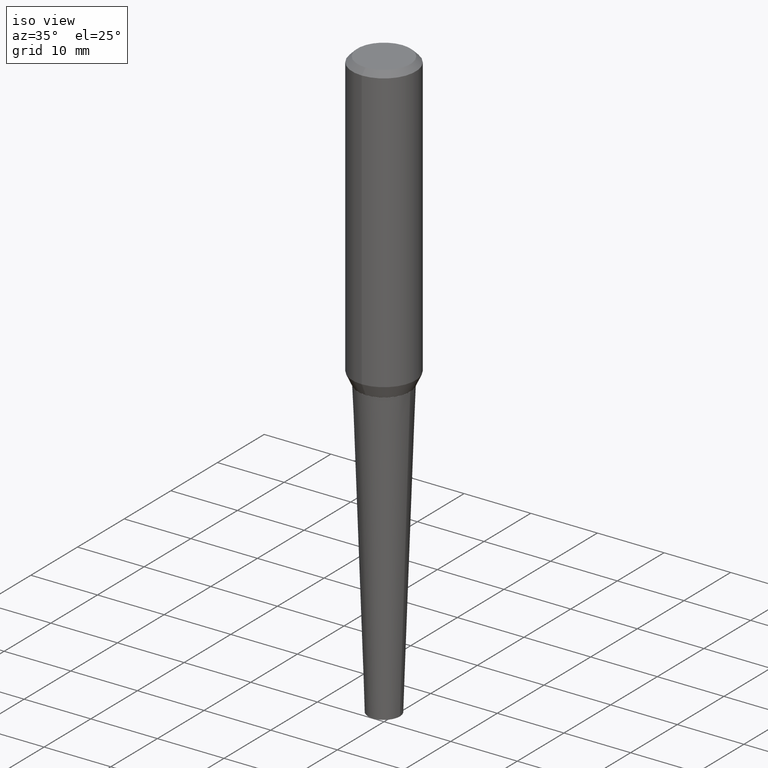
[diagram: clean part render]
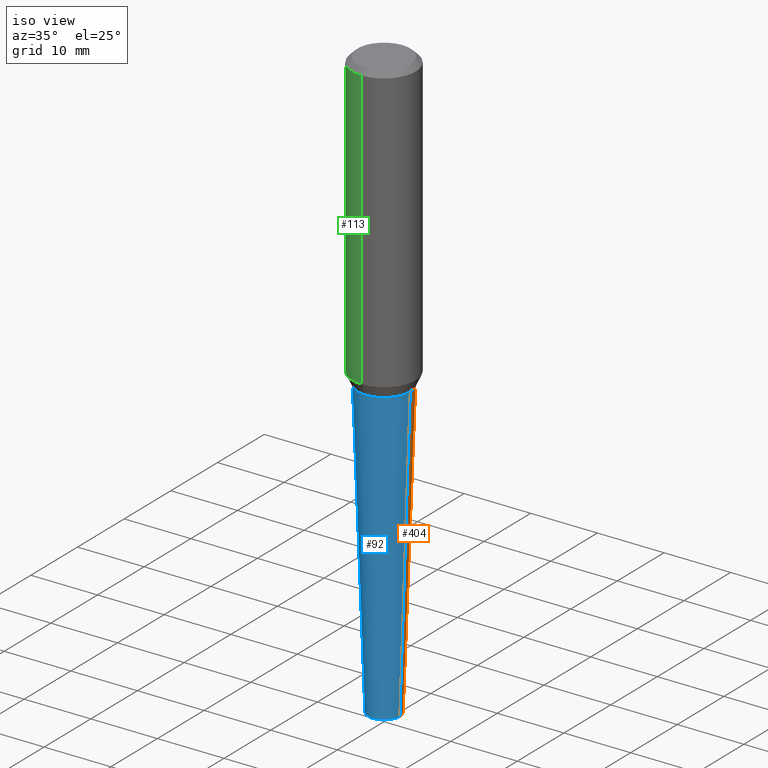
[diagram: same view with three faces highlighted in distinct colors, each labeled with its STEP entity id]
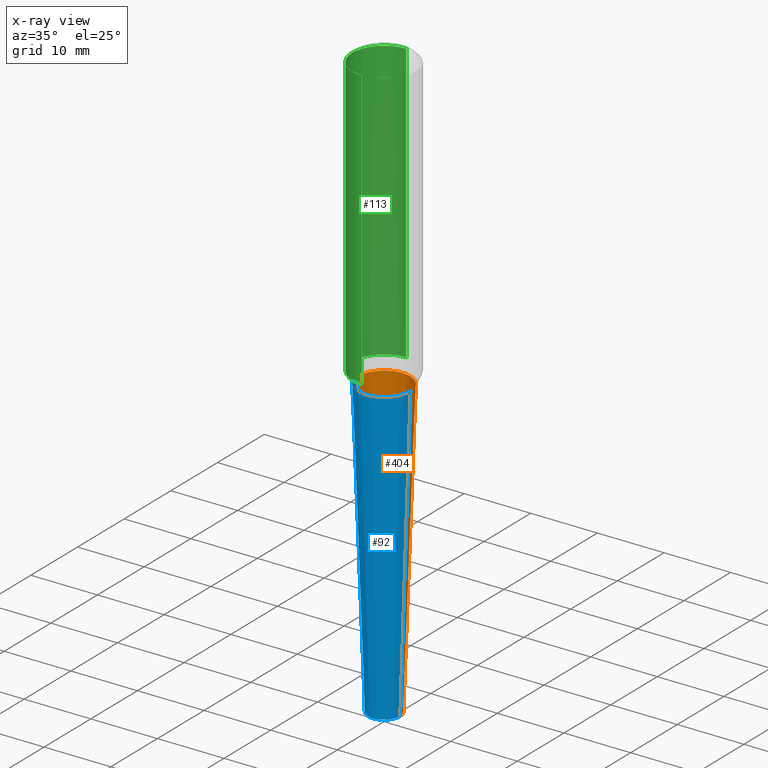
[diagram: x-ray of the same camera — body ghosted, the three highlighted faces saturated]
A machine part, iso view with three faces highlighted in distinct colors.
The next image is the same camera in x-ray (body ghosted, the three faces saturated) — at least one of them is partly hidden behind the body in this view.
Their STEP definitions:

[orange] entity #404 — the highlighted conical surface has half-angle 2 deg.
#6 = ORIENTED_EDGE ( 'NONE', *, *, #141, .T. ) ;
#24 = VERTEX_POINT ( 'NONE', #65 ) ;
#30 = DIRECTION ( 'NONE',  ( -0.03489949670249375274, 3.737330261384596316E-15, 0.9993908270190959842 ) ) ;
#45 = EDGE_CURVE ( 'NONE', #403, #308, #387, .T. ) ;
#65 = CARTESIAN_POINT ( 'NONE',  ( 0.1548613466105459580, -7.191483346573183541E-15, -1.750000000000000000 ) ) ;
#101 = CARTESIAN_POINT ( 'NONE',  ( 8.559140821647976968E-29, -1.222018468595100934E-14, -3.500000000000000000 ) ) ;
#104 = DIRECTION ( 'NONE',  ( 1.000000000000000000, -6.982962677686257244E-15, 0.000000000000000000 ) ) ;
#112 = CARTESIAN_POINT ( 'NONE',  ( -0.09375000000000006939, -8.281893582654957434E-15, -3.500000000000000000 ) ) ;
#126 = CONICAL_SURFACE ( 'NONE', #342, 0.09375000000000006939, 0.03490658503987936756 ) ;
#128 = ORIENTED_EDGE ( 'NONE', *, *, #45, .T. ) ;
#141 = EDGE_CURVE ( 'NONE', #308, #344, #282, .T. ) ;
#151 = ORIENTED_EDGE ( 'NONE', *, *, #214, .F. ) ;
#174 = LINE ( 'NONE', #266, #377 ) ;
#184 = CIRCLE ( 'NONE', #306, 0.1548613466105459580 ) ;
#190 = DIRECTION ( 'NONE',  ( -2.445468806185136597E-29, 3.491481338843145583E-15, 1.000000000000000000 ) ) ;
#195 = CARTESIAN_POINT ( 'NONE',  ( 0.09375000000000006939, -1.287483743698409606E-14, -3.500000000000000000 ) ) ;
#197 = CARTESIAN_POINT ( 'NONE',  ( -0.09375000000000006939, -1.155405087117591384E-14, -3.500000000000000000 ) ) ;
#199 = CARTESIAN_POINT ( 'NONE',  ( 4.279570410823988484E-29, -6.110092342975504671E-15, -1.750000000000000000 ) ) ;
#207 = AXIS2_PLACEMENT_3D ( 'NONE', #295, #357, #233 ) ;
#214 = EDGE_CURVE ( 'NONE', #403, #24, #174, .T. ) ;
#233 = DIRECTION ( 'NONE',  ( 1.000000000000000000, -6.982962677686257244E-15, 0.000000000000000000 ) ) ;
#266 = CARTESIAN_POINT ( 'NONE',  ( 0.09375000000000006939, -1.287483743698409606E-14, -3.500000000000000000 ) ) ;
#282 = LINE ( 'NONE', #197, #311 ) ;
#290 = DIRECTION ( 'NONE',  ( -2.445468806185136597E-29, 3.491481338843145583E-15, 1.000000000000000000 ) ) ;
#295 = CARTESIAN_POINT ( 'NONE',  ( 8.559140821647976968E-29, -1.222018468595100934E-14, -3.500000000000000000 ) ) ;
#296 = ORIENTED_EDGE ( 'NONE', *, *, #380, .F. ) ;
#297 = DIRECTION ( 'NONE',  ( 0.03489949670249375274, 3.245652539804642670E-15, 0.9993908270190959842 ) ) ;
#306 = AXIS2_PLACEMENT_3D ( 'NONE', #199, #290, #331 ) ;
#308 = VERTEX_POINT ( 'NONE', #112 ) ;
#311 = VECTOR ( 'NONE', #30, 39.37007874015748143 ) ;
#319 = EDGE_LOOP ( 'NONE', ( #128, #6, #296, #151 ) ) ;
#331 = DIRECTION ( 'NONE',  ( 1.000000000000000000, -6.982962677686268288E-15, 0.000000000000000000 ) ) ;
#342 = AXIS2_PLACEMENT_3D ( 'NONE', #101, #190, #104 ) ;
#344 = VERTEX_POINT ( 'NONE', #374 ) ;
#357 = DIRECTION ( 'NONE',  ( -2.445468806185136597E-29, 3.491481338843145583E-15, 1.000000000000000000 ) ) ;
#374 = CARTESIAN_POINT ( 'NONE',  ( -0.1548613466105459580, -5.009736294134001028E-15, -1.750000000000000000 ) ) ;
#377 = VECTOR ( 'NONE', #297, 39.37007874015748143 ) ;
#380 = EDGE_CURVE ( 'NONE', #24, #344, #184, .T. ) ;
#384 = FACE_OUTER_BOUND ( 'NONE', #319, .T. ) ;
#387 = CIRCLE ( 'NONE', #207, 0.09375000000000006939 ) ;
#403 = VERTEX_POINT ( 'NONE', #195 ) ;
#404 = ADVANCED_FACE ( 'NONE', ( #384 ), #126, .T. ) ;

[blue] entity #92 — the highlighted conical surface has half-angle 2 deg.
#24 = VERTEX_POINT ( 'NONE', #65 ) ;
#30 = DIRECTION ( 'NONE',  ( -0.03489949670249375274, 3.737330261384596316E-15, 0.9993908270190959842 ) ) ;
#35 = DIRECTION ( 'NONE',  ( -2.445468806185136597E-29, 3.491481338843145583E-15, 1.000000000000000000 ) ) ;
#37 = DIRECTION ( 'NONE',  ( 1.000000000000000000, -6.982962677686257244E-15, 0.000000000000000000 ) ) ;
#54 = CIRCLE ( 'NONE', #372, 0.09375000000000006939 ) ;
#65 = CARTESIAN_POINT ( 'NONE',  ( 0.1548613466105459580, -7.191483346573183541E-15, -1.750000000000000000 ) ) ;
#69 = CIRCLE ( 'NONE', #111, 0.1548613466105459580 ) ;
#71 = FACE_OUTER_BOUND ( 'NONE', #341, .T. ) ;
#92 = ADVANCED_FACE ( 'NONE', ( #71 ), #392, .T. ) ;
#111 = AXIS2_PLACEMENT_3D ( 'NONE', #203, #225, #414 ) ;
#112 = CARTESIAN_POINT ( 'NONE',  ( -0.09375000000000006939, -8.281893582654957434E-15, -3.500000000000000000 ) ) ;
#114 = DIRECTION ( 'NONE',  ( 1.000000000000000000, -6.982962677686257244E-15, 0.000000000000000000 ) ) ;
#122 = CARTESIAN_POINT ( 'NONE',  ( 8.559140821647976968E-29, -1.222018468595100934E-14, -3.500000000000000000 ) ) ;
#141 = EDGE_CURVE ( 'NONE', #308, #344, #282, .T. ) ;
#174 = LINE ( 'NONE', #266, #377 ) ;
#193 = CARTESIAN_POINT ( 'NONE',  ( 8.559140821647976968E-29, -1.222018468595100934E-14, -3.500000000000000000 ) ) ;
#195 = CARTESIAN_POINT ( 'NONE',  ( 0.09375000000000006939, -1.287483743698409606E-14, -3.500000000000000000 ) ) ;
#197 = CARTESIAN_POINT ( 'NONE',  ( -0.09375000000000006939, -1.155405087117591384E-14, -3.500000000000000000 ) ) ;
#203 = CARTESIAN_POINT ( 'NONE',  ( 4.279570410823988484E-29, -6.110092342975504671E-15, -1.750000000000000000 ) ) ;
#214 = EDGE_CURVE ( 'NONE', #403, #24, #174, .T. ) ;
#219 = ORIENTED_EDGE ( 'NONE', *, *, #214, .T. ) ;
#225 = DIRECTION ( 'NONE',  ( -2.445468806185136597E-29, 3.491481338843145583E-15, 1.000000000000000000 ) ) ;
#240 = ORIENTED_EDGE ( 'NONE', *, *, #305, .T. ) ;
#266 = CARTESIAN_POINT ( 'NONE',  ( 0.09375000000000006939, -1.287483743698409606E-14, -3.500000000000000000 ) ) ;
#268 = DIRECTION ( 'NONE',  ( -2.445468806185136597E-29, 3.491481338843145583E-15, 1.000000000000000000 ) ) ;
#282 = LINE ( 'NONE', #197, #311 ) ;
#297 = DIRECTION ( 'NONE',  ( 0.03489949670249375274, 3.245652539804642670E-15, 0.9993908270190959842 ) ) ;
#305 = EDGE_CURVE ( 'NONE', #308, #403, #54, .T. ) ;
#308 = VERTEX_POINT ( 'NONE', #112 ) ;
#311 = VECTOR ( 'NONE', #30, 39.37007874015748143 ) ;
#341 = EDGE_LOOP ( 'NONE', ( #411, #240, #219, #381 ) ) ;
#344 = VERTEX_POINT ( 'NONE', #374 ) ;
#372 = AXIS2_PLACEMENT_3D ( 'NONE', #122, #268, #114 ) ;
#374 = CARTESIAN_POINT ( 'NONE',  ( -0.1548613466105459580, -5.009736294134001028E-15, -1.750000000000000000 ) ) ;
#377 = VECTOR ( 'NONE', #297, 39.37007874015748143 ) ;
#381 = ORIENTED_EDGE ( 'NONE', *, *, #386, .F. ) ;
#386 = EDGE_CURVE ( 'NONE', #344, #24, #69, .T. ) ;
#392 = CONICAL_SURFACE ( 'NONE', #412, 0.09375000000000006939, 0.03490658503987936756 ) ;
#403 = VERTEX_POINT ( 'NONE', #195 ) ;
#411 = ORIENTED_EDGE ( 'NONE', *, *, #141, .F. ) ;
#412 = AXIS2_PLACEMENT_3D ( 'NONE', #193, #35, #37 ) ;
#414 = DIRECTION ( 'NONE',  ( 1.000000000000000000, -6.982962677686268288E-15, 0.000000000000000000 ) ) ;

[green] entity #113 — the highlighted cylindrical surface (partial cylindrical patch) has radius 4.7625 mm, axis along (-0, 0, 1).
#7 = CARTESIAN_POINT ( 'NONE',  ( 1.332267629550185482E-15, 0.1874999999999996947, -5.735975815650552031E-16 ) ) ;
#19 = VECTOR ( 'NONE', #44, 39.37007874015748143 ) ;
#36 = CARTESIAN_POINT ( 'NONE',  ( 4.156093693560677196E-29, -5.797414033508819911E-15, -1.680006181930203013 ) ) ;
#42 = CYLINDRICAL_SURFACE ( 'NONE', #267, 0.1875000000000001943 ) ;
#44 = DIRECTION ( 'NONE',  ( -2.676116305263811806E-29, 3.161180992522094459E-15, 1.000000000000000000 ) ) ;
#51 = VERTEX_POINT ( 'NONE', #198 ) ;
#55 = ORIENTED_EDGE ( 'NONE', *, *, #180, .T. ) ;
#75 = CARTESIAN_POINT ( 'NONE',  ( -3.397982428467408395E-30, -4.866104238714468673E-16, 1.912385453283800096E-17 ) ) ;
#82 = CARTESIAN_POINT ( 'NONE',  ( -1.286343374582167887E-15, -0.1875000000000010270, -0.03124999999999950734 ) ) ;
#90 = ORIENTED_EDGE ( 'NONE', *, *, #363, .F. ) ;
#105 = CIRCLE ( 'NONE', #221, 0.1875000000000004718 ) ;
#109 = DIRECTION ( 'NONE',  ( -2.676116305263811806E-29, 3.161180992522094064E-15, 1.000000000000000000 ) ) ;
#113 = ADVANCED_FACE ( 'NONE', ( #334 ), #42, .T. ) ;
#133 = VERTEX_POINT ( 'NONE', #318 ) ;
#137 = VECTOR ( 'NONE', #354, 39.37007874015748143 ) ;
#150 = EDGE_CURVE ( 'NONE', #51, #133, #173, .T. ) ;
#157 = AXIS2_PLACEMENT_3D ( 'NONE', #36, #161, #264 ) ;
#161 = DIRECTION ( 'NONE',  ( -2.676116305263811806E-29, 3.161180992522094064E-15, 1.000000000000000000 ) ) ;
#173 = CIRCLE ( 'NONE', #157, 0.1874999999999999445 ) ;
#180 = EDGE_CURVE ( 'NONE', #133, #275, #288, .T. ) ;
#198 = CARTESIAN_POINT ( 'NONE',  ( 1.332267629550207570E-15, 0.1874999999999941436, -1.680006181930203457 ) ) ;
#206 = LINE ( 'NONE', #7, #19 ) ;
#221 = AXIS2_PLACEMENT_3D ( 'NONE', #257, #109, #234 ) ;
#227 = EDGE_CURVE ( 'NONE', #51, #383, #206, .T. ) ;
#230 = CARTESIAN_POINT ( 'NONE',  ( 1.309305502066175600E-15, 0.1874999999999998890, -0.03125000000000069389 ) ) ;
#234 = DIRECTION ( 'NONE',  ( -6.982962677686265922E-15, -1.000000000000000000, 3.164390592661096858E-15 ) ) ;
#236 = DIRECTION ( 'NONE',  ( -2.676116305263811806E-29, 3.161180992522094064E-15, 1.000000000000000000 ) ) ;
#257 = CARTESIAN_POINT ( 'NONE',  ( -2.561696083072463877E-30, -5.853973298877627382E-16, -0.03125000000000010408 ) ) ;
#259 = CARTESIAN_POINT ( 'NONE',  ( -1.309305502066179544E-15, -0.1875000000000006661, 6.118452906307312050E-16 ) ) ;
#264 = DIRECTION ( 'NONE',  ( -6.982962677686266711E-15, -1.000000000000000000, 2.913971193241881555E-15 ) ) ;
#267 = AXIS2_PLACEMENT_3D ( 'NONE', #75, #236, #364 ) ;
#275 = VERTEX_POINT ( 'NONE', #82 ) ;
#279 = ORIENTED_EDGE ( 'NONE', *, *, #150, .T. ) ;
#288 = LINE ( 'NONE', #259, #137 ) ;
#318 = CARTESIAN_POINT ( 'NONE',  ( -1.309305502066133001E-15, -0.1875000000000057454, -1.680006181930202347 ) ) ;
#334 = FACE_OUTER_BOUND ( 'NONE', #348, .T. ) ;
#348 = EDGE_LOOP ( 'NONE', ( #385, #279, #55, #90 ) ) ;
#354 = DIRECTION ( 'NONE',  ( -2.676116305263811806E-29, 3.161180992522094459E-15, 1.000000000000000000 ) ) ;
#363 = EDGE_CURVE ( 'NONE', #383, #275, #105, .T. ) ;
#364 = DIRECTION ( 'NONE',  ( -6.982962677686265922E-15, -1.000000000000000000, 3.161180992522093670E-15 ) ) ;
#383 = VERTEX_POINT ( 'NONE', #230 ) ;
#385 = ORIENTED_EDGE ( 'NONE', *, *, #227, .F. ) ;